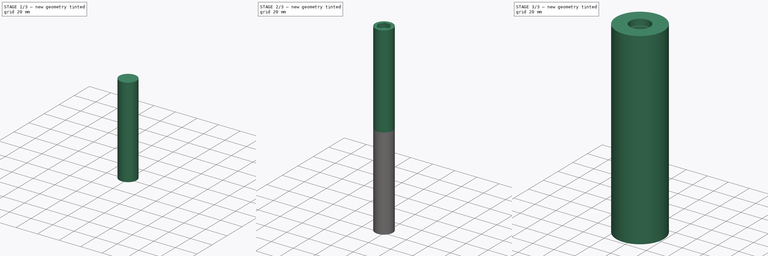
[diagram: build sequence overview — one tinted view per stage of 3, left to right]
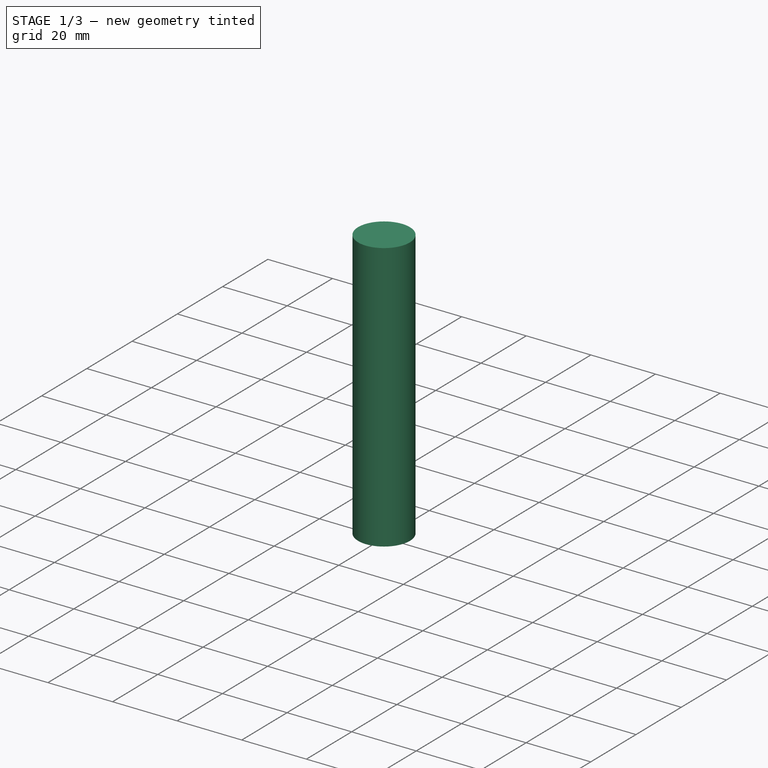
[diagram: stage 1 of 3 — iso view after this stage's code; geometry added in this stage tinted green]
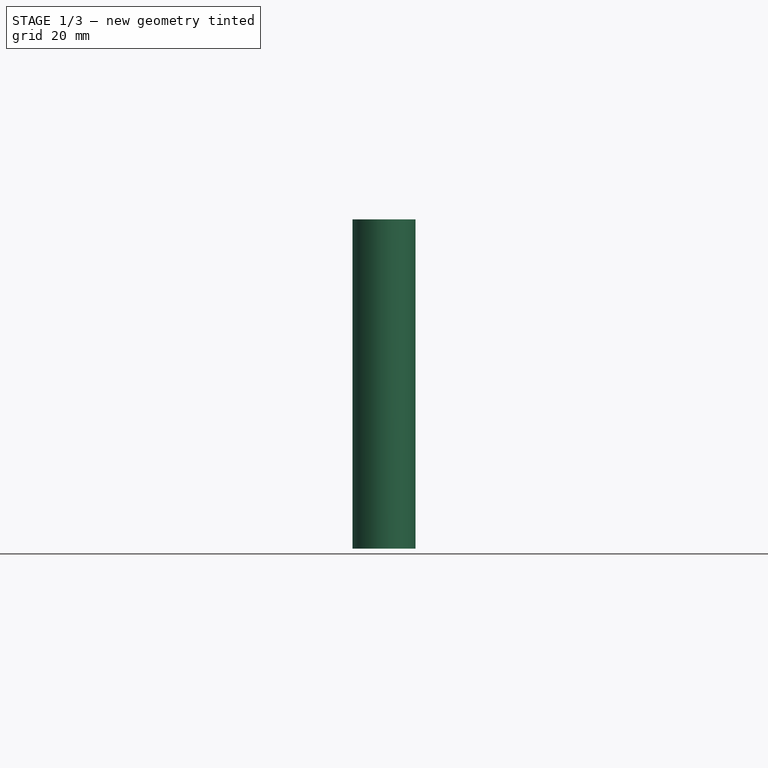
[diagram: stage 1 of 3 — front view after this stage's code; geometry added in this stage tinted green]
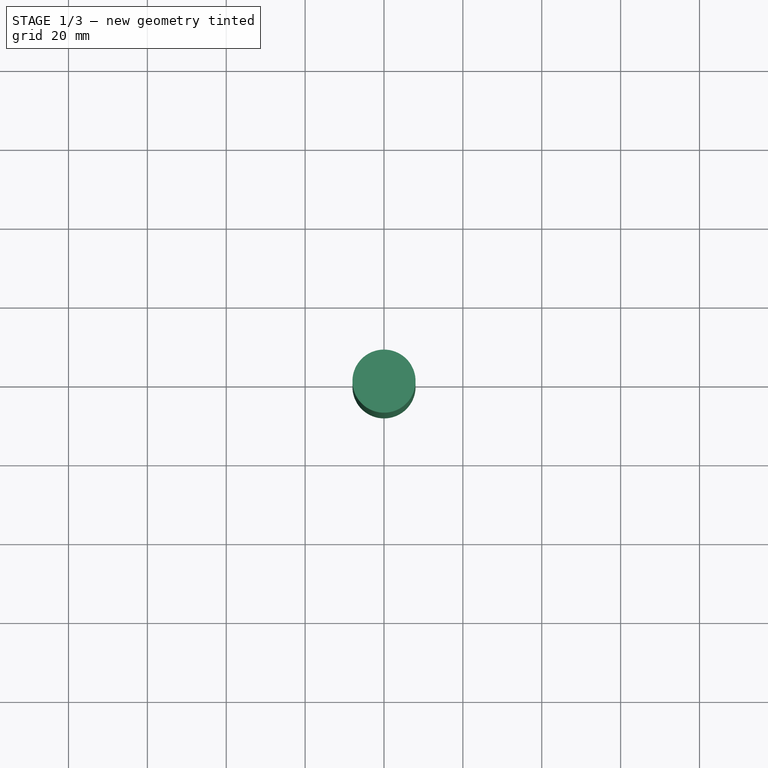
[diagram: stage 1 of 3 — top view after this stage's code; geometry added in this stage tinted green]
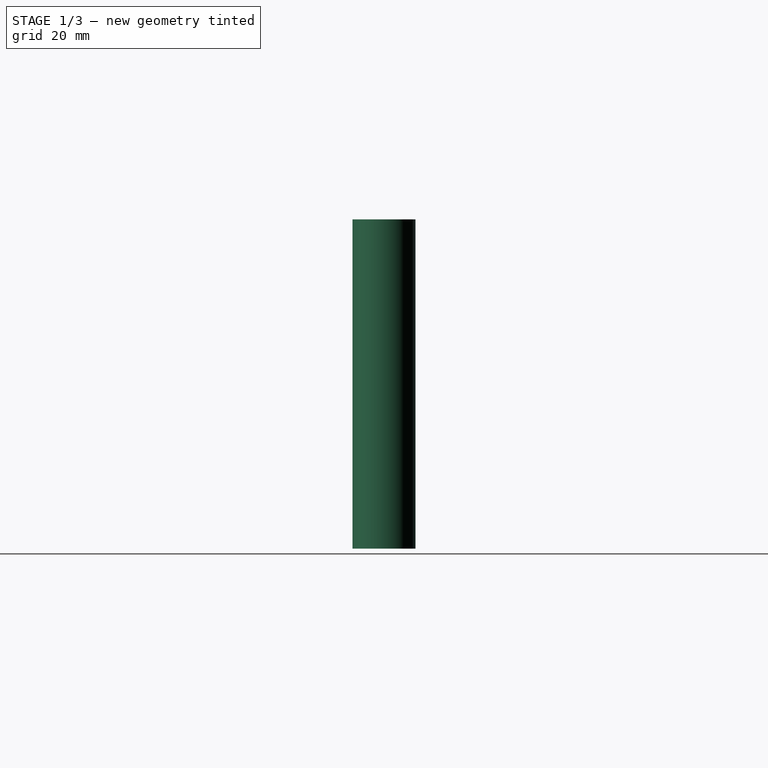
[diagram: stage 1 of 3 — right view after this stage's code; geometry added in this stage tinted green]
FCSTD DOCUMENT  (FreeCAD 0.19R24291 (Git))
Label: Валик
License: All rights reserved
LicenseURL: http://en.wikipedia.org/wiki/All_rights_reserved
objects: Sketcher::SketchObject×3, PartDesign::Revolution×2, PartDesign::Mirrored×2, PartDesign::Body×2, PartDesign::Pocket×1
note: 13 computed .brp shape members not serialized (recipe doc carries the construction recipe); baked Part::Feature solids carry a one-line shape summary decoded from their .brp

FEATURE [Sketcher::SketchObject] Sketch
  FullyConstrained = false
  MapMode = 5
  Placement = pos=(0,0,0) rot=(1,0,0;1.5708rad)
  Support = -> [XZ_Plane]
  sketch-geometry (9):
    g0: LineSegment StartX=0 StartY=14 StartZ=0 EndX=3.25 EndY=14 EndZ=0
    g1: LineSegment StartX=3.25 StartY=14 StartZ=0 EndX=3.25 EndY=4 EndZ=0
    g2: LineSegment StartX=3.25 StartY=4 StartZ=0 EndX=5 EndY=4 EndZ=0
    g3: LineSegment StartX=5 StartY=0 StartZ=0 EndX=8 EndY=0 EndZ=0
    g4: LineSegment StartX=8 StartY=0 StartZ=0 EndX=8 EndY=83.5 EndZ=0
    g5: LineSegment StartX=8 StartY=83.5 StartZ=0 EndX=0 EndY=83.5 EndZ=0
    g6: LineSegment StartX=0 StartY=83.5 StartZ=0 EndX=0 EndY=14 EndZ=0
    g7: LineSegment StartX=3.25 StartY=4 StartZ=0 EndX=3.25 EndY=0 EndZ=0
    g8: LineSegment StartX=3.25 StartY=0 StartZ=0 EndX=5 EndY=0 EndZ=0
  constraints (25):
    c: PointOnObject(g0,g-2)
    c: Horizontal(g0)
    c: Coincident(g0,g1)
    c: Vertical(g1)
    c: Coincident(g1,g2)
    c: Horizontal(g2)
    c: PointOnObject(g3,g-1)
    c: PointOnObject(g3,g-1)
    c: Coincident(g3,g4)
    c: Vertical(g4)
    c: Coincident(g4,g5)
    c: Horizontal(g5)
    c: Coincident(g5,g6)
    c: Coincident(g6,g0)
    c: Vertical(g6)
    c: Distance(g0) = 3.25
    c: Distance(g3,g-1) = 5
    c: Distance(g3,g-1) = 8
    c: Distance(g1) = 10
    c: Distance(g1,g5) = 79.5
    c: Coincident(g7,g1)
    c: PointOnObject(g7,g-1)
    c: Vertical(g7)
    c: Coincident(g8,g7)
    c: Coincident(g8,g3)
FEATURE [PartDesign::Revolution] Revolution
  Angle = 360
  Axis = (0,2e-16,1)
  Base = (0,0,0)
  Placement = pos=(0,0,0) rot=(1,0,0;1.5708rad)
  Profile = -> Sketch
  ReferenceAxis = -> Sketch [V_Axis]
  Reversed = true
FEATURE [PartDesign::Body] Body001
  Group = -> [Sketch001,Revolution001,Mirrored001]
  Origin = -> Origin001
  Tip = -> Mirrored001
FEATURE [Sketcher::SketchObject] Sketch002
  FullyConstrained = true
  MapMode = 5
  Placement = pos=(0,0,0) rot=(1,0,0;3.14159rad)
  Support = -> [Revolution]
  sketch-geometry (7):
    g0: LineSegment StartX=2.88675 StartY=5 StartZ=0 EndX=-2.88675 EndY=5 EndZ=0
    g1: LineSegment StartX=-2.88675 StartY=5 StartZ=0 EndX=-5.7735 EndY=1.8696e-12 EndZ=0
    g2: LineSegment StartX=-5.7735 StartY=1.8696e-12 StartZ=0 EndX=-2.88675 EndY=-5 EndZ=0
    g3: LineSegment StartX=-2.88675 StartY=-5 StartZ=0 EndX=2.88675 EndY=-5 EndZ=0
    g4: LineSegment StartX=2.88675 StartY=-5 StartZ=0 EndX=5.7735 EndY=1.8217e-12 EndZ=0
    g5: LineSegment StartX=5.7735 StartY=1.8217e-12 StartZ=0 EndX=2.88675 EndY=5 EndZ=0
    g6: Circle CenterX=0 CenterY=0 CenterZ=0 NormalX=0 NormalY=0 NormalZ=1 AngleXU=0 Radius=5.7735
  constraints (16):
    c: Coincident(g0,g1)
    c: Coincident(g1,g2)
    c: Coincident(g2,g3)
    c: Coincident(g3,g4)
    c: Coincident(g4,g5)
    c: Coincident(g5,g0)
    c: Equal(g0, g1-g5) x5
    c: PointOnObject(g0,g6)
    c: PointOnObject(g1,g6)
    c: PointOnObject(g2,g6)
    c: PointOnObject(g3,g6)
    c: PointOnObject(g4,g6)
    c: PointOnObject(g5,g6)
    c: Coincident(g6,g-1)
    c: Horizontal(g0)
    c: Distance(g3,g0) = 10
FEATURE [PartDesign::Pocket] Pocket
  BaseFeature = -> Revolution
  Length = 4
  Length2 = 100
  Placement = pos=(0,0,0) rot=(1,0,0;1.5708rad)
  Profile = -> Sketch002
  Type = 0
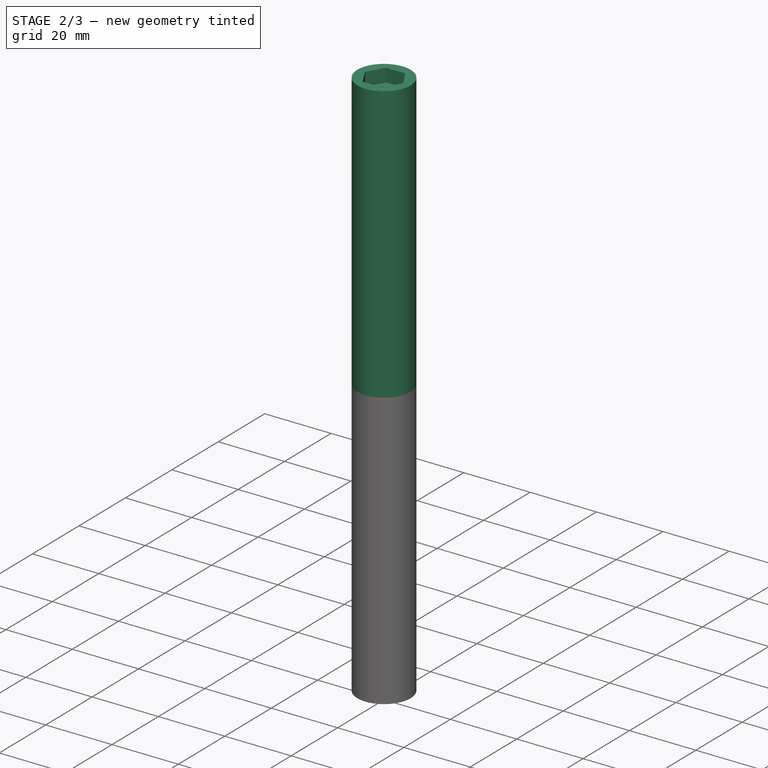
[diagram: stage 2 of 3 — iso view after this stage's code; geometry added in this stage tinted green]
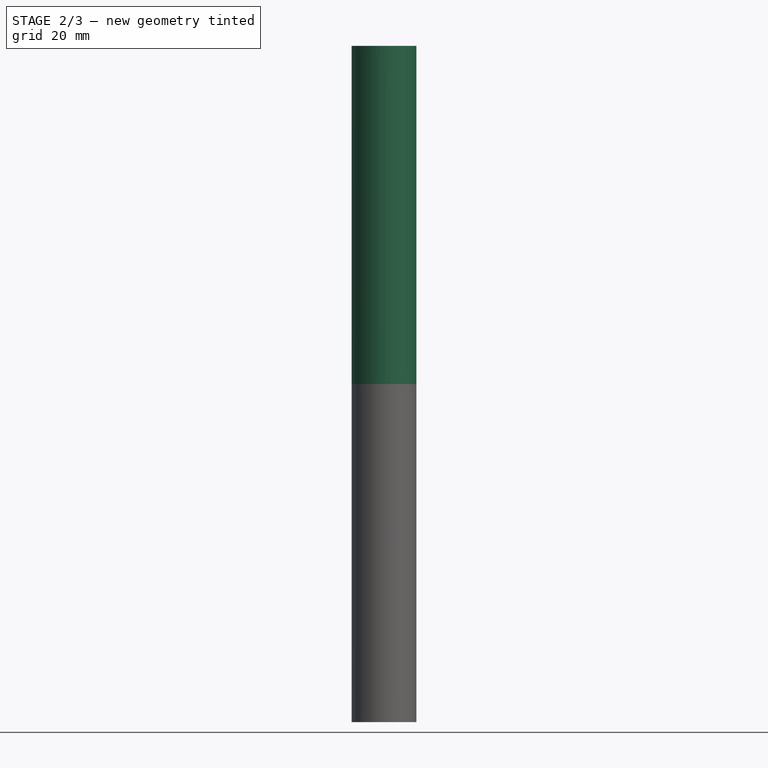
[diagram: stage 2 of 3 — front view after this stage's code; geometry added in this stage tinted green]
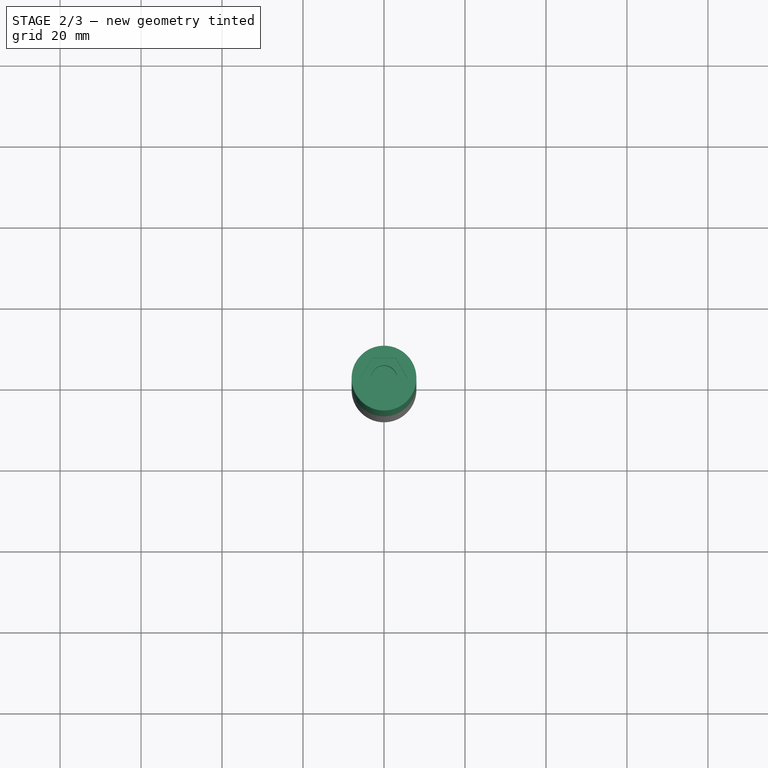
[diagram: stage 2 of 3 — top view after this stage's code; geometry added in this stage tinted green]
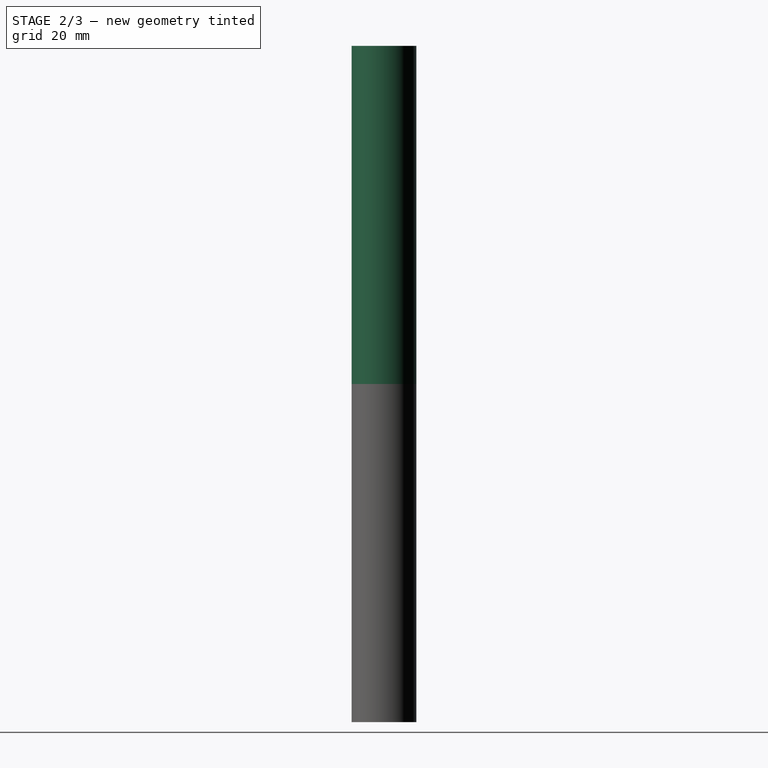
[diagram: stage 2 of 3 — right view after this stage's code; geometry added in this stage tinted green]
FEATURE [PartDesign::Mirrored] Mirrored
  BaseFeature = -> Pocket
  MirrorPlane = -> Pocket [Face12]
  Originals = -> [Revolution,Pocket]
  Placement = pos=(0,0,0) rot=(1,0,0;1.5708rad)
FEATURE [PartDesign::Body] Body
  Group = -> [Sketch,Revolution,Sketch002,Pocket,Mirrored]
  Origin = -> Origin
  Placement = pos=(0,0,6) rot=(0,0,1;0rad)
  Tip = -> Mirrored
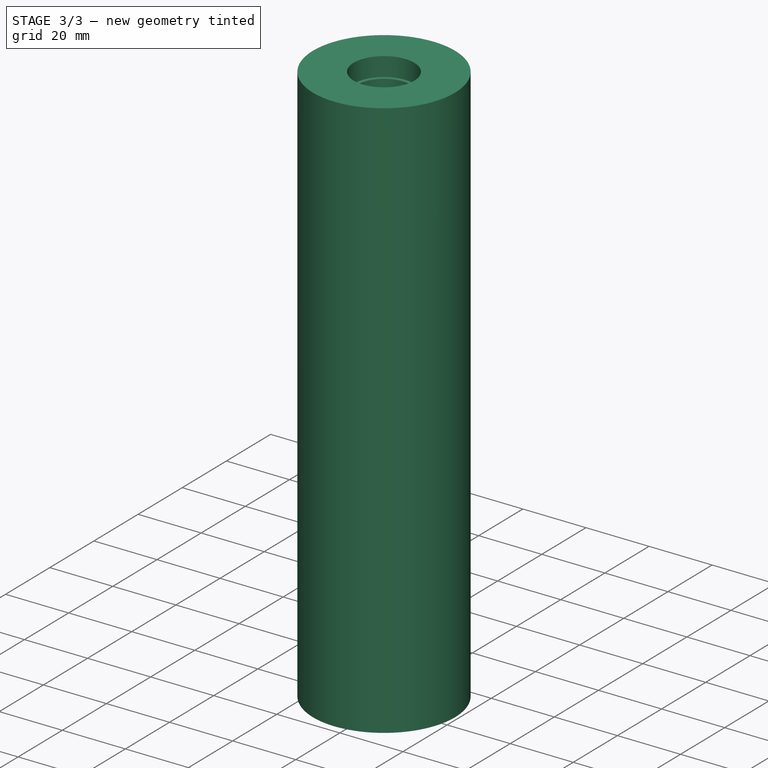
[diagram: stage 3 of 3 — iso view after this stage's code; geometry added in this stage tinted green]
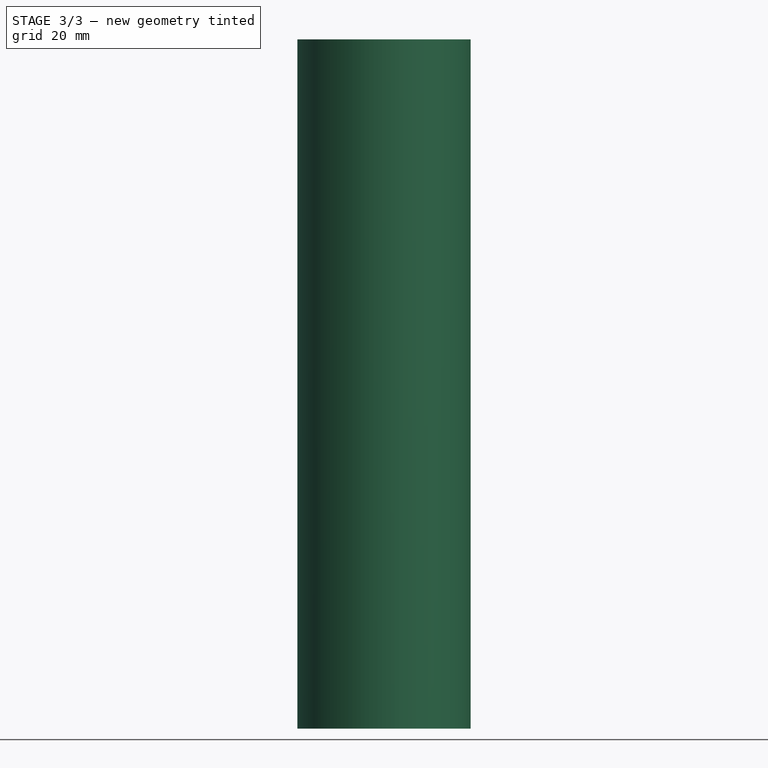
[diagram: stage 3 of 3 — front view after this stage's code; geometry added in this stage tinted green]
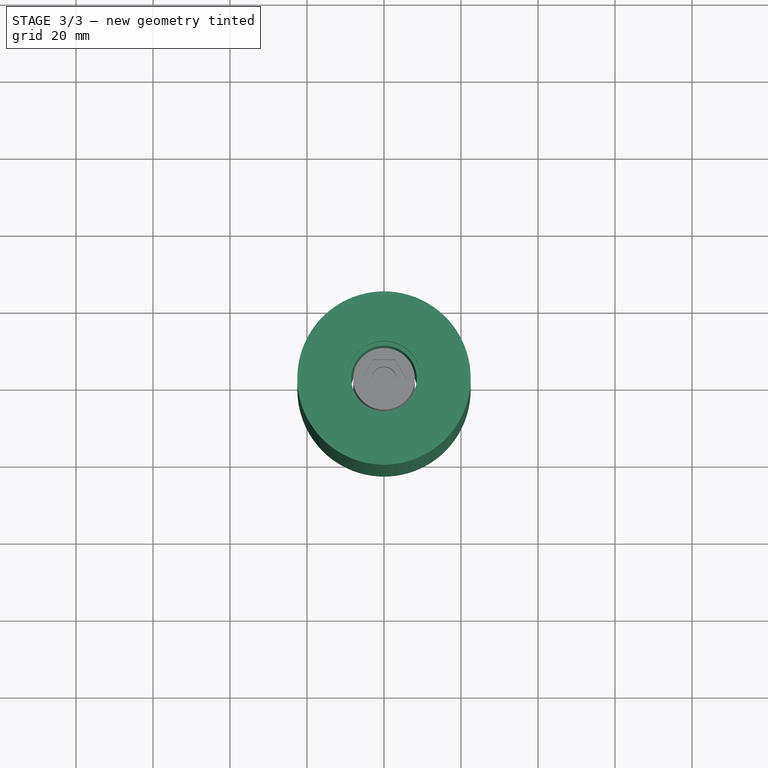
[diagram: stage 3 of 3 — top view after this stage's code; geometry added in this stage tinted green]
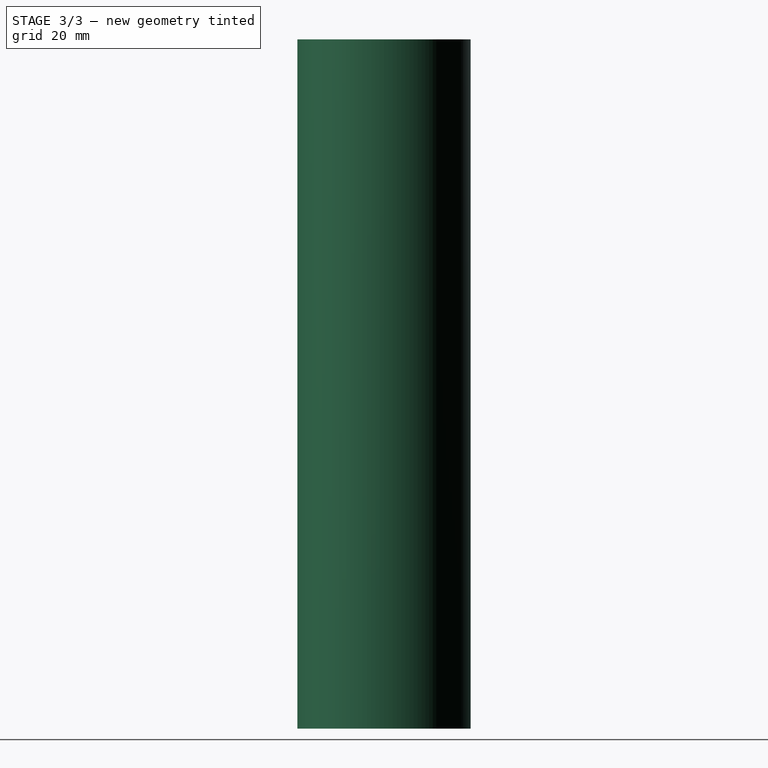
[diagram: stage 3 of 3 — right view after this stage's code; geometry added in this stage tinted green]
FEATURE [Sketcher::SketchObject] Sketch001
  FullyConstrained = true
  MapMode = 5
  Placement = pos=(0,0,0) rot=(1,0,0;1.5708rad)
  Support = -> [XZ_Plane001]
  sketch-geometry (6):
    g0: LineSegment StartX=10.5 StartY=89.5 StartZ=0 EndX=8.5 EndY=6 EndZ=0
    g1: LineSegment StartX=8.5 StartY=6 StartZ=0 EndX=9.6 EndY=6 EndZ=0
    g2: LineSegment StartX=9.6 StartY=6 StartZ=0 EndX=9.6 EndY=0 EndZ=0
    g3: LineSegment StartX=9.6 StartY=0 StartZ=0 EndX=22.5 EndY=0 EndZ=0
    g4: LineSegment StartX=22.5 StartY=0 StartZ=0 EndX=22.5 EndY=89.5 EndZ=0
    g5: LineSegment StartX=22.5 StartY=89.5 StartZ=0 EndX=10.5 EndY=89.5 EndZ=0
  constraints (18):
    c: Coincident(g0,g1)
    c: Horizontal(g1)
    c: Coincident(g1,g2)
    c: PointOnObject(g2,g-1)
    c: Vertical(g2)
    c: Coincident(g2,g3)
    c: PointOnObject(g3,g-1)
    c: Coincident(g3,g4)
    c: Vertical(g4)
    c: Coincident(g4,g5)
    c: Coincident(g5,g0)
    c: Horizontal(g5)
    c: Distance(g0,g-2) = 8.5
    c: Distance(g2,g-2) = 9.6
    c: Distance(g2) = 6
    c: Distance(g3,g-2) = 22.5
    c: Distance(g4) = 89.5
    c: Distance(g0,g-2) = 10.5
FEATURE [PartDesign::Revolution] Revolution001
  Angle = 360
  Axis = (0,2e-16,1)
  Base = (0,0,0)
  Placement = pos=(0,0,0) rot=(1,0,0;1.5708rad)
  Profile = -> Sketch001
  ReferenceAxis = -> Sketch001 [V_Axis]
  Reversed = true
FEATURE [PartDesign::Mirrored] Mirrored001
  BaseFeature = -> Revolution001
  MirrorPlane = -> Revolution001 [Face6]
  Originals = -> [Revolution001]
  Placement = pos=(0,0,0) rot=(1,0,0;1.5708rad)
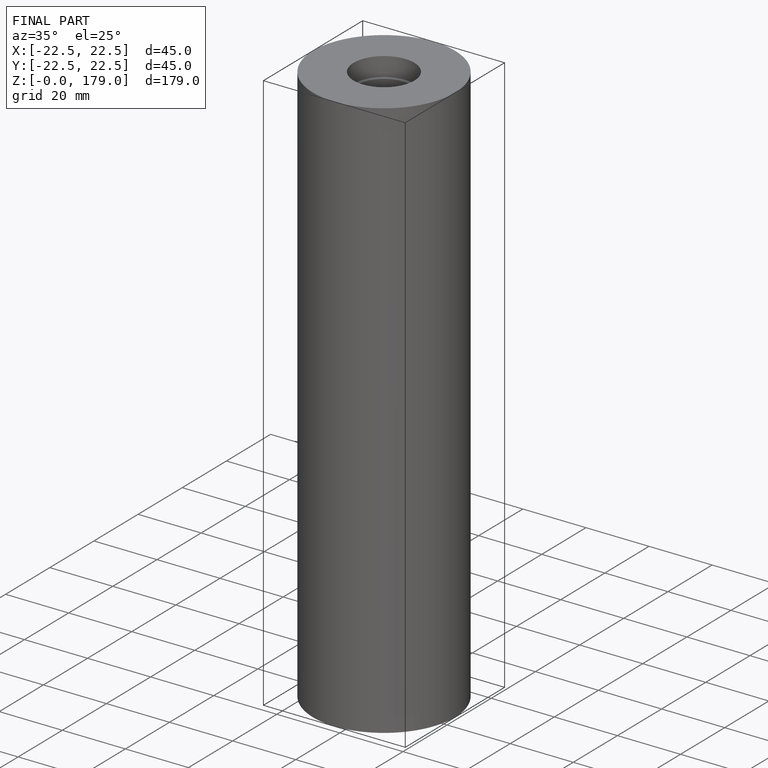
[diagram: finished part — iso view with bounding-box wireframe]
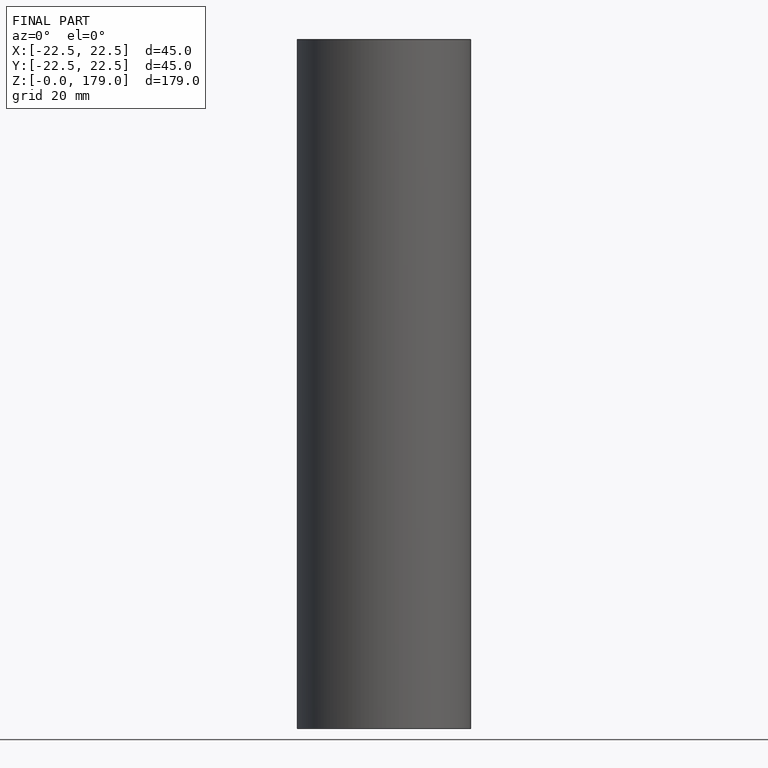
[diagram: finished part — front view with bounding-box wireframe]
